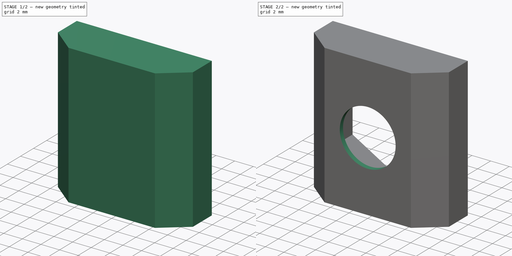
[diagram: build sequence overview — one tinted view per stage of 2, left to right]
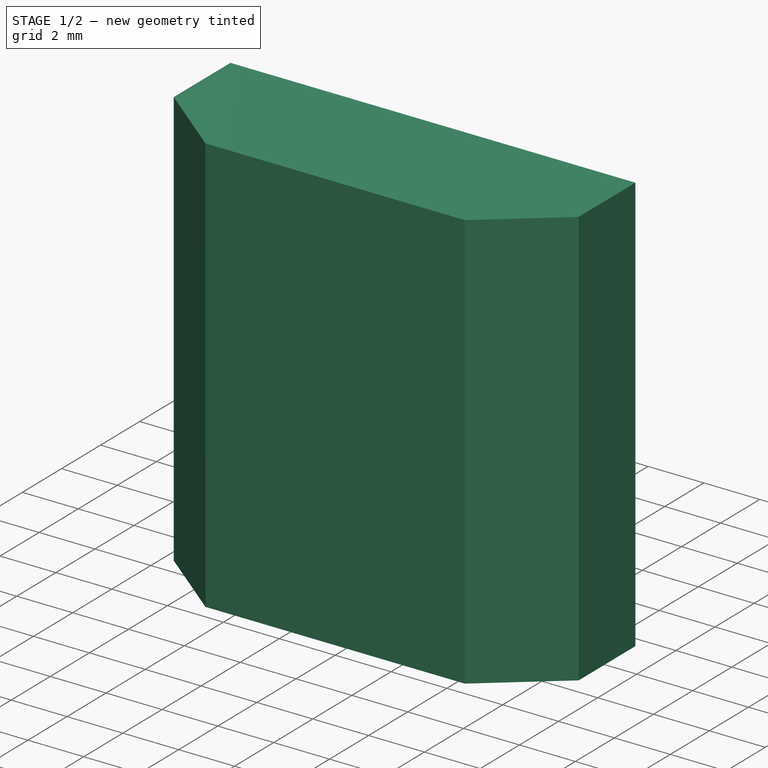
[diagram: stage 1 of 2 — iso view after this stage's code; geometry added in this stage tinted green]
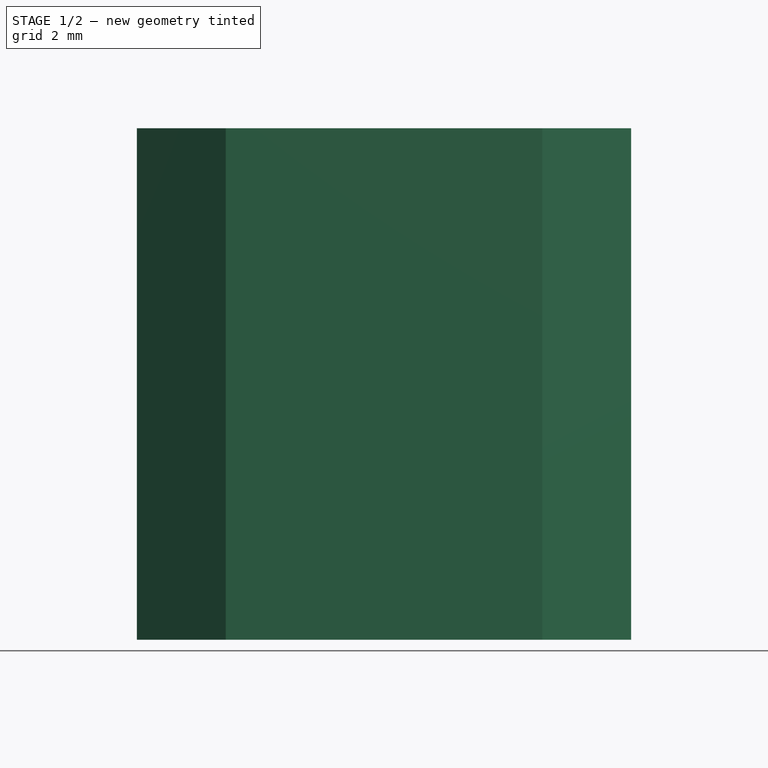
[diagram: stage 1 of 2 — front view after this stage's code; geometry added in this stage tinted green]
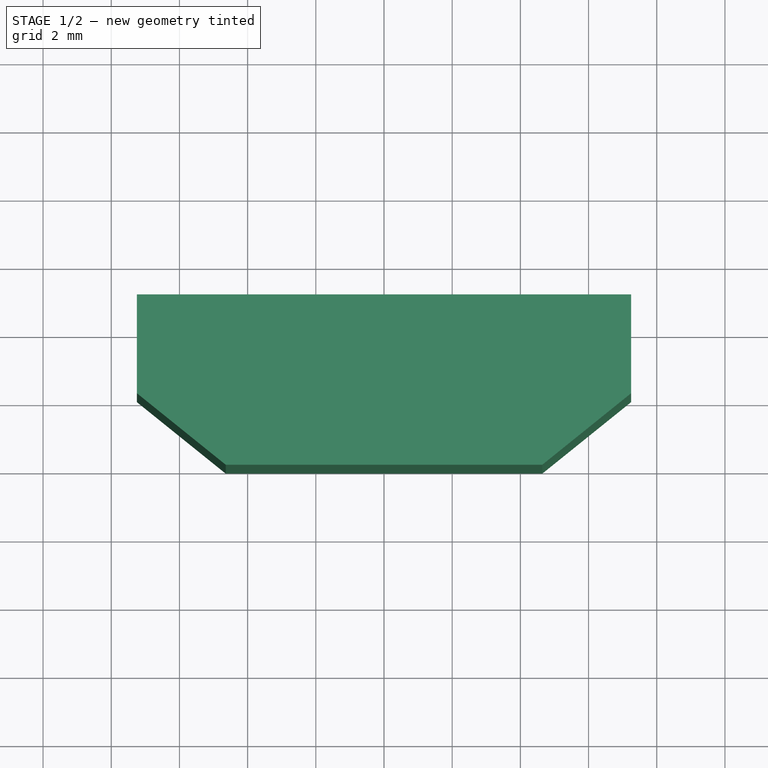
[diagram: stage 1 of 2 — top view after this stage's code; geometry added in this stage tinted green]
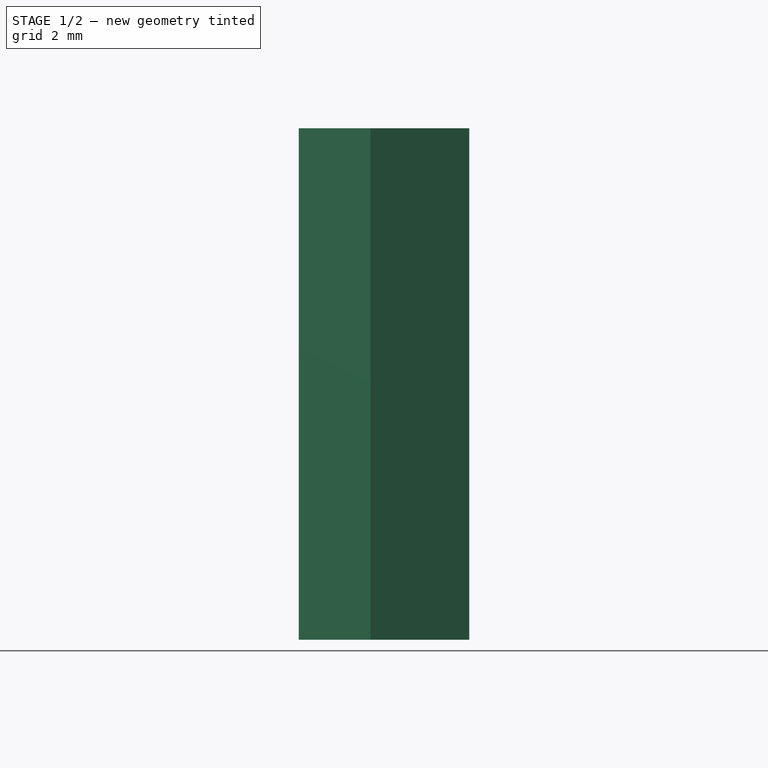
[diagram: stage 1 of 2 — right view after this stage's code; geometry added in this stage tinted green]
FCSTD DOCUMENT  (FreeCAD 0.18.4R)
Label: nut6steineM6
License: All rights reserved
LicenseURL: http://en.wikipedia.org/wiki/All_rights_reserved
objects: Sketcher::SketchObject×3, PartDesign::Pocket×2, PartDesign::Pad×1, PartDesign::Body×1
note: 10 computed .brp shape members not serialized (recipe doc carries the construction recipe); baked Part::Feature solids carry a one-line shape summary decoded from their .brp

FEATURE [Sketcher::SketchObject] Sketch
  MapMode = 5
  Support = -> [XY_Plane]
  sketch-geometry (8):
    g0: LineSegment StartX=7.25 StartY=5 StartZ=0 EndX=7.25 EndY=2.1 EndZ=0
    g1: LineSegment StartX=7.25 StartY=2.1 StartZ=0 EndX=4.64186 EndY=0 EndZ=0
    g2: LineSegment StartX=4.64186 StartY=0 StartZ=0 EndX=0 EndY=0 EndZ=0
    g3: LineSegment StartX=0 StartY=5 StartZ=0 EndX=7.25 EndY=5 EndZ=0
    g4: LineSegment StartX=-7.25 StartY=5 StartZ=0 EndX=-7.25 EndY=2.1 EndZ=0
    g5: LineSegment StartX=-7.25 StartY=2.1 StartZ=0 EndX=-4.64186 EndY=0 EndZ=0
    g6: LineSegment StartX=-4.64186 StartY=0 StartZ=0 EndX=0 EndY=0 EndZ=0
    g7: LineSegment StartX=0 StartY=5 StartZ=0 EndX=-7.25 EndY=5 EndZ=0
  constraints (20):
    c: PointOnObject(g3,g-2)
    c: Vertical(g0)
    c: Coincident(g0,g1)
    c: PointOnObject(g1,g-1)
    c: Coincident(g1,g2)
    c: Coincident(g2,g-1)
    c: Coincident(g3,g0)
    c: Horizontal(g3)
    c: DistanceX(g3,g3) = 7.25
    c: DistanceY(g2,g3) = 5
    c: DistanceY(g0,g0) = 2.9
    c: Coincident(g4,g5)
    c: Coincident(g5,g6)
    c: Coincident(g7,g4)
    c: Symmetric(g4,g0,g-2)
    c: Symmetric(g4,g0,g-2)
    c: Symmetric(g5,g1,g-2)
    c: Coincident(g7,g3)
    c: Coincident(g6,g2)
    c: Angle(g1) = -2.46371
FEATURE [PartDesign::Pad] Pad
  Length = 15
  Length2 = 50
  Midplane = true
  Profile = -> Sketch
  Type = 0
FEATURE [Sketcher::SketchObject] Sketch001
  MapMode = 5
  Placement = pos=(0,5,0) rot=(0,0.707107,0.707107;3.14159rad)
  Support = -> [Pad]
  sketch-geometry (7):
    g0: LineSegment StartX=0 StartY=5.91784 StartZ=0 EndX=-5.125 EndY=2.95892 EndZ=0
    g1: LineSegment StartX=-5.125 StartY=2.95892 StartZ=0 EndX=-5.125 EndY=-2.95892 EndZ=0
    g2: LineSegment StartX=-5.125 StartY=-2.95892 StartZ=0 EndX=0 EndY=-5.91784 EndZ=0
    g3: LineSegment StartX=0 StartY=-5.91784 StartZ=0 EndX=5.125 EndY=-2.95892 EndZ=0
    g4: LineSegment StartX=5.125 StartY=-2.95892 StartZ=0 EndX=5.125 EndY=2.95892 EndZ=0
    g5: LineSegment StartX=5.125 StartY=2.95892 StartZ=0 EndX=0 EndY=5.91784 EndZ=0
    g6: Circle [constr] CenterX=0 CenterY=0 CenterZ=0 NormalX=0 NormalY=0 NormalZ=1 AngleXU=0 Radius=5.91784
  constraints (16):
    c: Coincident(g0,g1)
    c: Coincident(g1,g2)
    c: Coincident(g2,g3)
    c: Coincident(g3,g4)
    c: Coincident(g4,g5)
    c: Coincident(g5,g0)
    c: Equal(g0, g1-g5) x5
    c: PointOnObject(g0,g6)
    c: PointOnObject(g1,g6)
    c: PointOnObject(g2,g6)
    c: PointOnObject(g3,g6)
    c: PointOnObject(g4,g6)
    c: PointOnObject(g5,g6)
    c: Coincident(g6,g-1)
    c: PointOnObject(g5,g-2)
    c: DistanceX(g0,g4) = 10.25
FEATURE [PartDesign::Pocket] Pocket
  BaseFeature = -> Pad
  Length = 4.5
  Length2 = 100
  Profile = -> Sketch001
  Type = 0
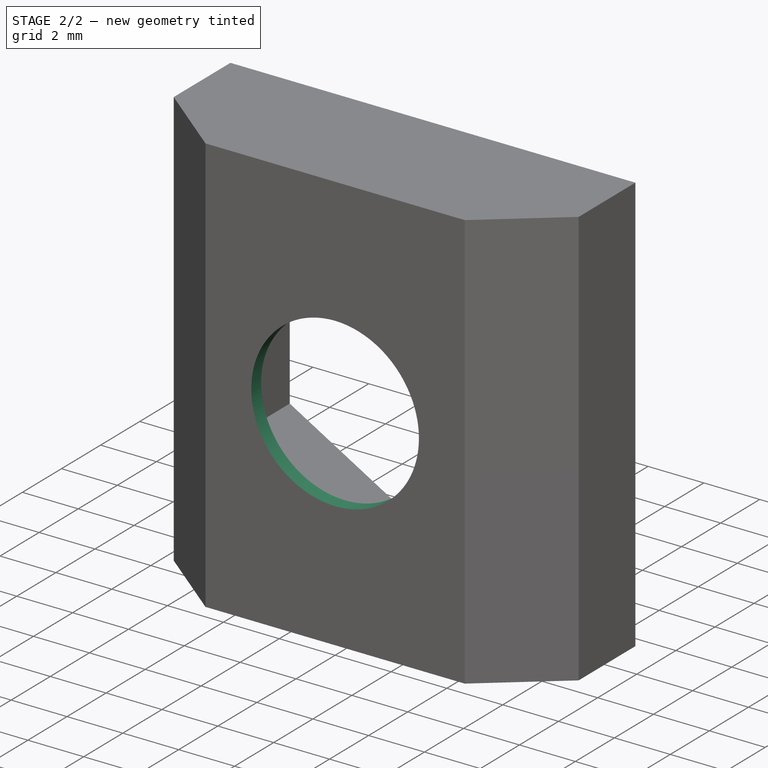
[diagram: stage 2 of 2 — iso view after this stage's code; geometry added in this stage tinted green]
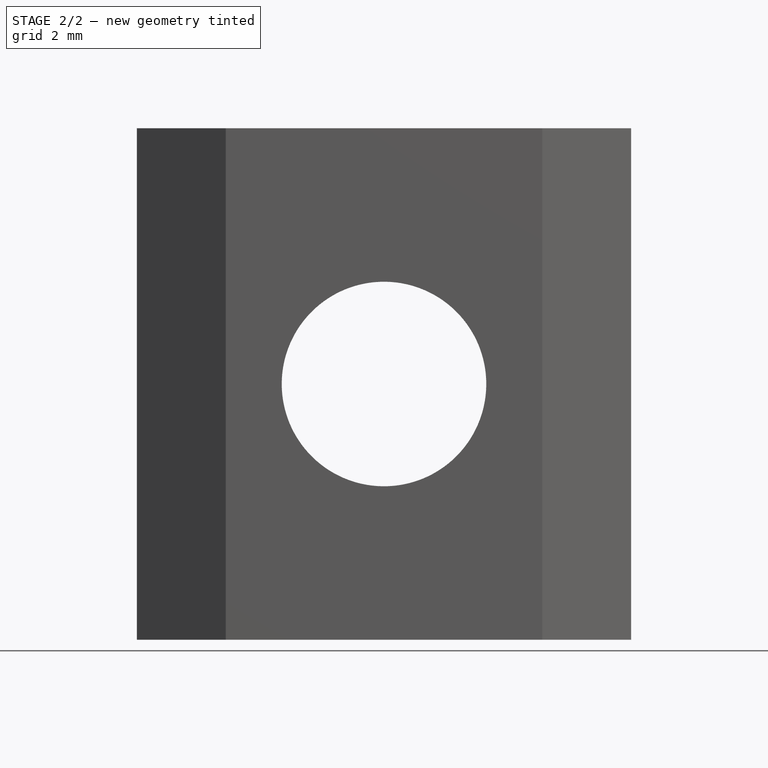
[diagram: stage 2 of 2 — front view after this stage's code; geometry added in this stage tinted green]
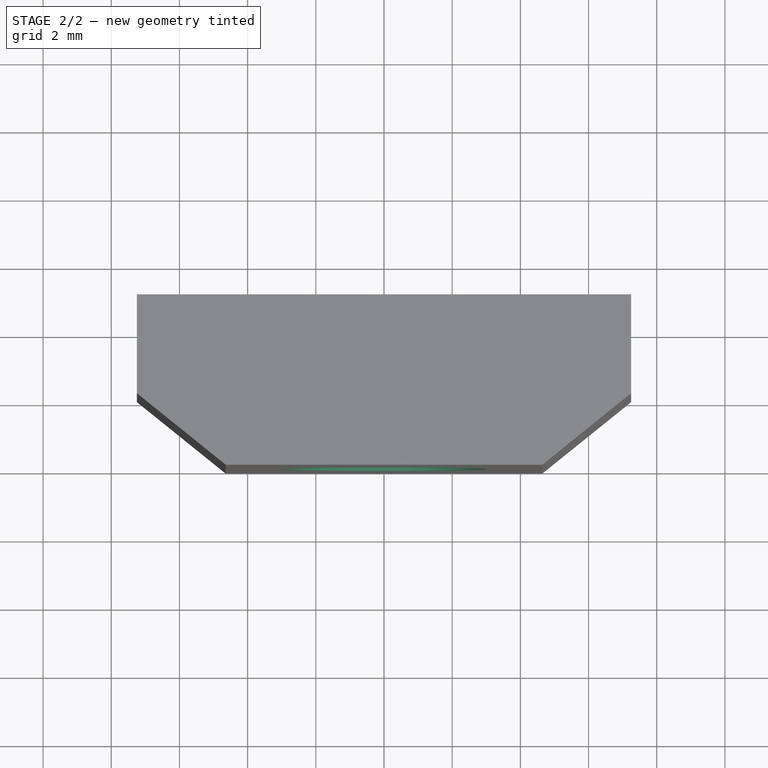
[diagram: stage 2 of 2 — top view after this stage's code; geometry added in this stage tinted green]
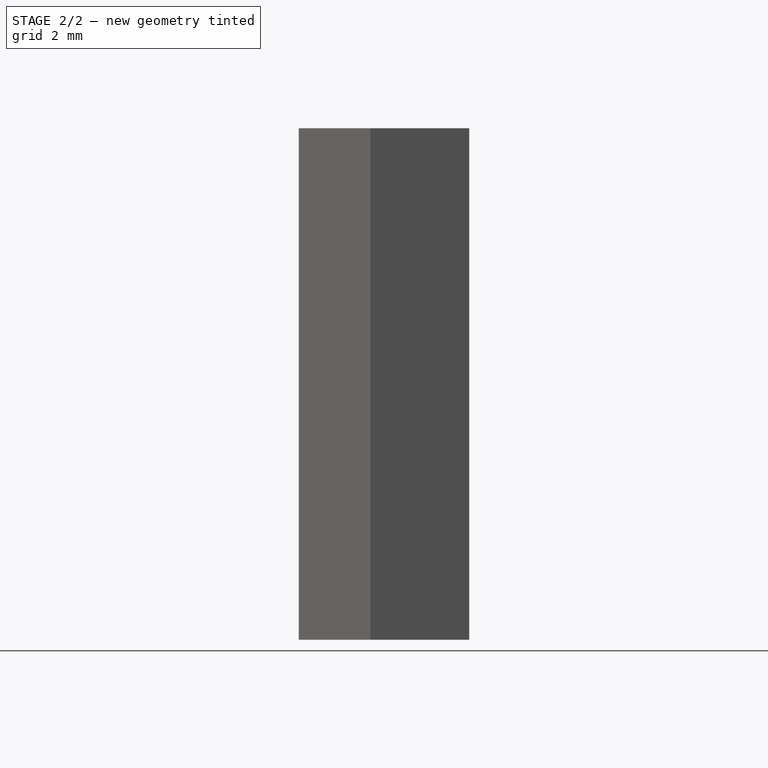
[diagram: stage 2 of 2 — right view after this stage's code; geometry added in this stage tinted green]
FEATURE [Sketcher::SketchObject] Sketch002
  MapMode = 5
  Placement = pos=(0,5,0) rot=(0,0.707107,0.707107;3.14159rad)
  Support = -> [Pocket]
  sketch-geometry (1):
    g0: Circle CenterX=0 CenterY=0 CenterZ=0 NormalX=0 NormalY=0 NormalZ=1 AngleXU=0 Radius=3
  constraints (2):
    c: Coincident(g0,g-1)
    c: Radius(g0) = 3
FEATURE [PartDesign::Pocket] Pocket001  label="M6"
  BaseFeature = -> Pocket
  Length = 5
  Length2 = 100
  Profile = -> Sketch002
  Type = 1
FEATURE [PartDesign::Body] Body
  Group = -> [Sketch,Pad,Sketch001,Pocket,Sketch002,Pocket001]
  Origin = -> Origin
  Tip = -> Pocket001
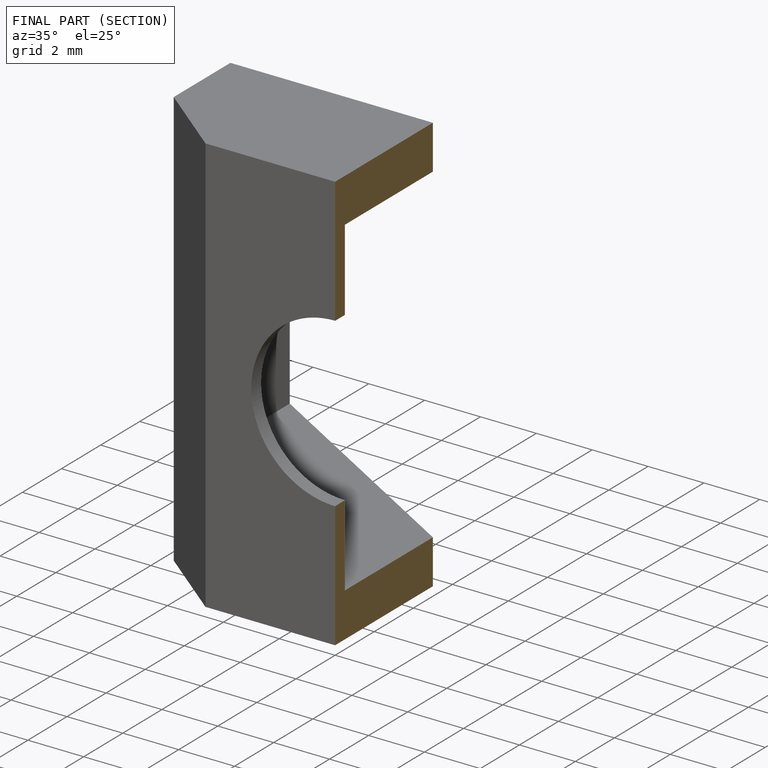
[diagram: finished part — half-section view (interior)]
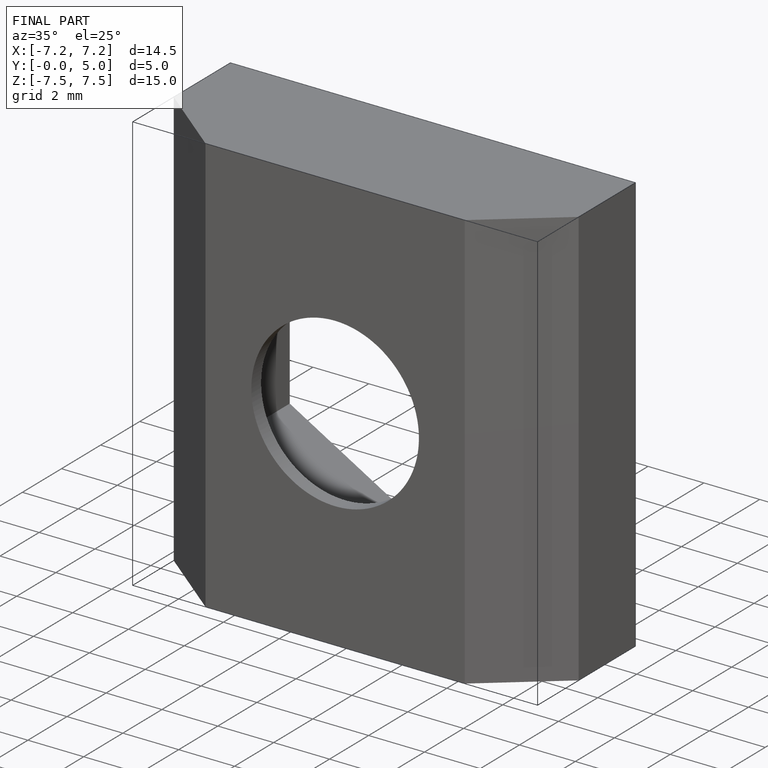
[diagram: finished part — iso view with bounding-box wireframe]
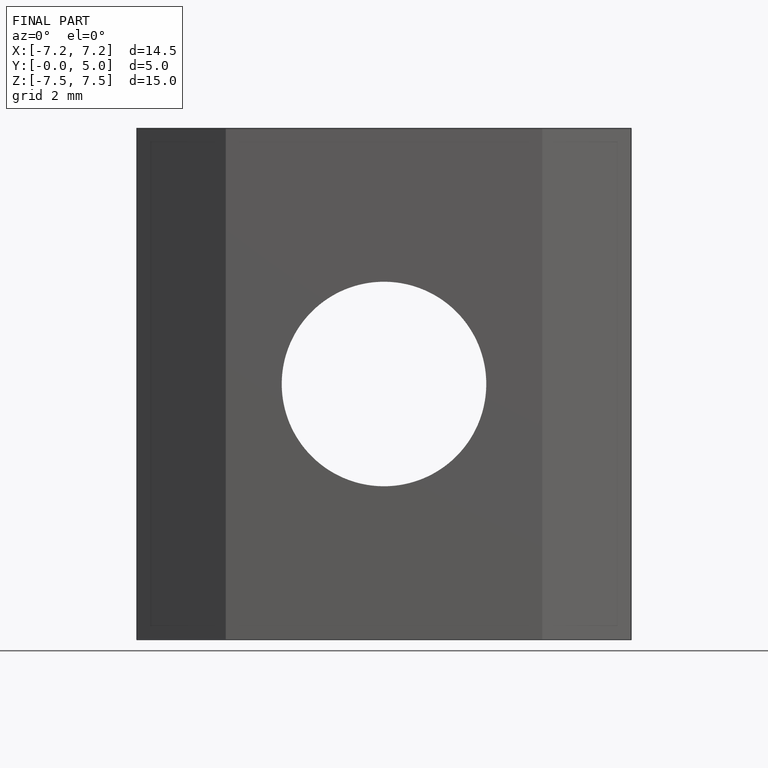
[diagram: finished part — front view with bounding-box wireframe]
